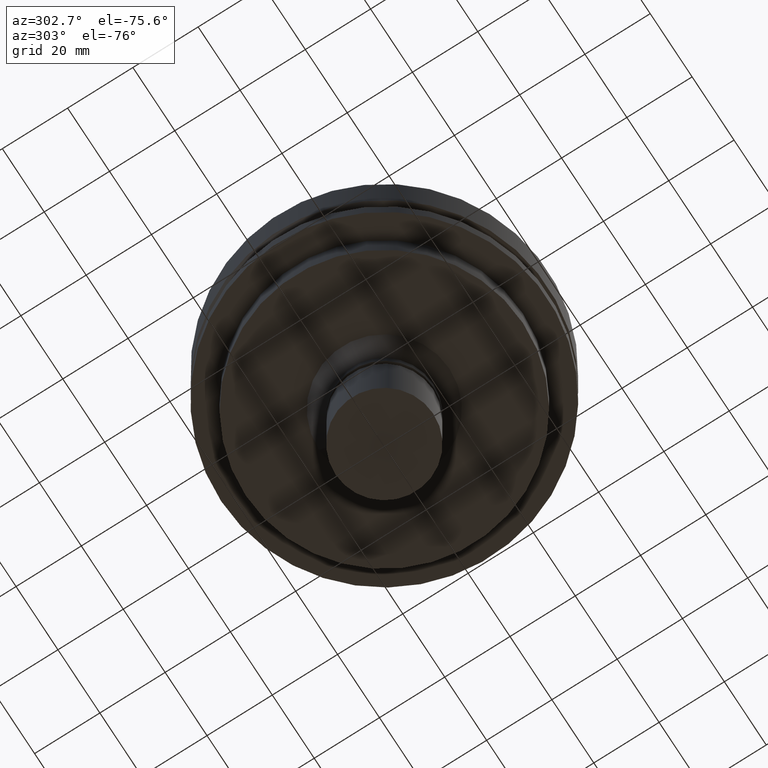
[diagram: clean part render]
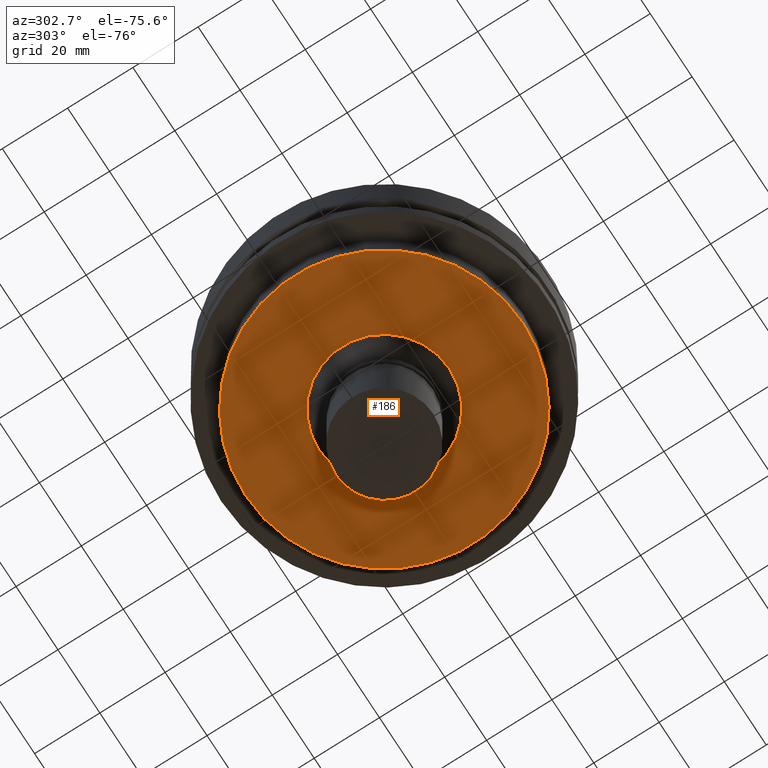
[diagram: same view with one face highlighted and labeled with its STEP entity id]
A machine part, auxiliary view. The second image highlights one B-rep face of the part: STEP entity #186.
In plain terms, the highlighted planar face has unit normal (0, 0, -1).
Its self-contained STEP definition (entity closure, byte-faithful):
#93=EDGE_CURVE('Unnamed[1]',#242,#242,#243,.T.);
#169=EDGE_CURVE('Unnamed[1]',#357,#357,#358,.T.);
#186=ADVANCED_FACE('Unnamed[1]',(#382,#383),#384,.T.);
#242=VERTEX_POINT('',#446);
#243=CIRCLE('',#447,42.5);
#357=VERTEX_POINT('',#590);
#358=CIRCLE('',#591,20.0);
#382=FACE_BOUND('',#621,.T.);
#383=FACE_OUTER_BOUND('',#622,.T.);
#384=PLANE('',#623);
#446=CARTESIAN_POINT('',(2.38806125833734E-015,42.5,-39.0));
#447=AXIS2_PLACEMENT_3D('',#679,#680,#681);
#590=CARTESIAN_POINT('',(2.38806125833734E-015,20.0,-39.0));
#591=AXIS2_PLACEMENT_3D('',#802,#803,#804);
#621=EDGE_LOOP('',(#831));
#622=EDGE_LOOP('',(#832));
#623=AXIS2_PLACEMENT_3D('',#833,#834,#835);
#679=CARTESIAN_POINT('',(2.38806125833734E-015,4.77612251667468E-015,-39.0));
#680=DIRECTION('',(6.12323399573677E-017,1.22464679914735E-016,-1.0));
#681=DIRECTION('',(-1.23259516440783E-032,1.0,1.22464679914735E-016));
#802=CARTESIAN_POINT('',(2.38806125833734E-015,4.77612251667468E-015,-39.0));
#803=DIRECTION('',(6.12323399573677E-017,1.22464679914735E-016,-1.0));
#804=DIRECTION('',(-1.23259516440783E-032,1.0,1.22464679914735E-016));
#831=ORIENTED_EDGE('',*,*,#169,.F.);
#832=ORIENTED_EDGE('',*,*,#93,.T.);
#833=CARTESIAN_POINT('',(2.38806125833734E-015,31.25,-39.0));
#834=DIRECTION('',(6.12323399573677E-017,1.22464679914735E-016,-1.0));
#835=DIRECTION('',(-1.23259516440783E-032,1.0,1.22464679914735E-016));